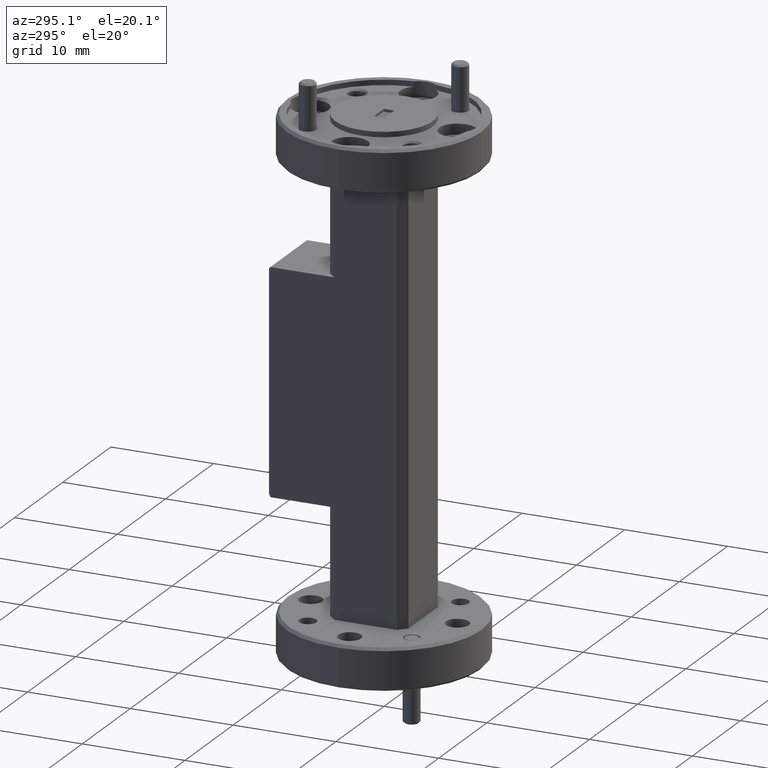
[diagram: clean part render]
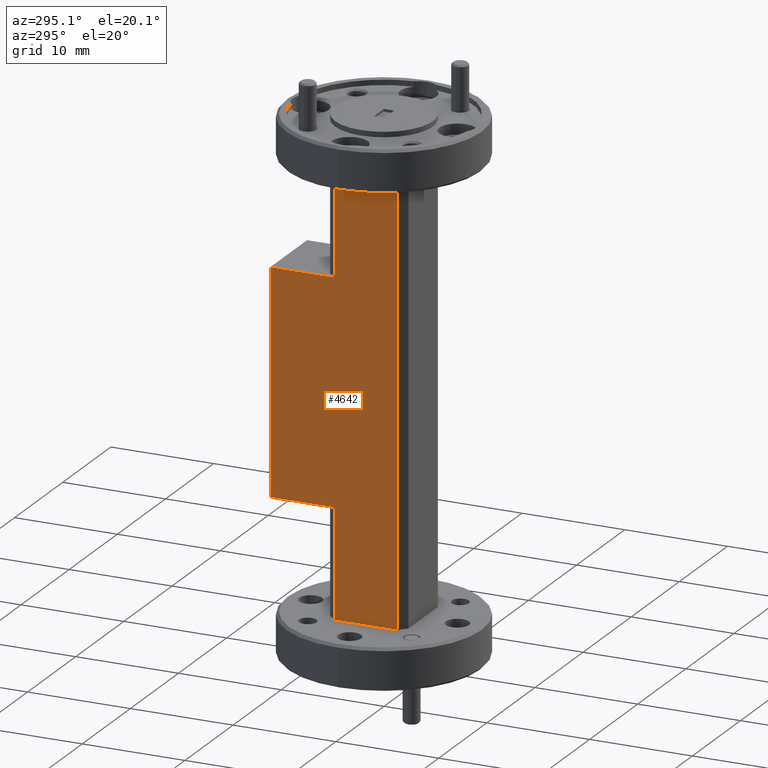
[diagram: same view with one face highlighted and labeled with its STEP entity id]
A machine part, auxiliary view. The second image highlights one B-rep face of the part: STEP entity #4642.
In plain terms, the highlighted planar face has unit normal (1, 0, -0).
Its self-contained STEP definition (entity closure, byte-faithful):
#112 = CARTESIAN_POINT ( 'NONE',  ( -0.1499999999999998834, 0.3649999999999998801, 0.4249999999999999889 ) ) ;
#197 = DIRECTION ( 'NONE',  ( -1.517693329813479319E-16, -1.000000000000000000, 0.000000000000000000 ) ) ;
#204 = DIRECTION ( 'NONE',  ( -1.707404996040164758E-16, 1.000000000000000000, 0.000000000000000000 ) ) ;
#291 = EDGE_CURVE ( 'NONE', #3747, #6281, #3305, .T. ) ;
#471 = ORIENTED_EDGE ( 'NONE', *, *, #5023, .T. ) ;
#603 = LINE ( 'NONE', #2907, #4680 ) ;
#607 = DIRECTION ( 'NONE',  ( -1.517693329813479319E-16, -1.000000000000000000, 0.000000000000000000 ) ) ;
#764 = DIRECTION ( 'NONE',  ( 1.000000000000000000, 1.707404996040164758E-16, -0.000000000000000000 ) ) ;
#768 = CARTESIAN_POINT ( 'NONE',  ( -0.1499999999999999112, 0.1200000000000003286, 0.4249999999999999889 ) ) ;
#1066 = EDGE_CURVE ( 'NONE', #1587, #3207, #3054, .T. ) ;
#1462 = CARTESIAN_POINT ( 'NONE',  ( -0.1499999999999998834, 0.3750000000000000555, 0.4249999999999999889 ) ) ;
#1494 = VECTOR ( 'NONE', #4973, 39.37007874015748143 ) ;
#1562 = DIRECTION ( 'NONE',  ( 0.000000000000000000, 0.000000000000000000, -1.000000000000000000 ) ) ;
#1587 = VERTEX_POINT ( 'NONE', #5098 ) ;
#1854 = DIRECTION ( 'NONE',  ( 0.000000000000000000, 0.000000000000000000, -1.000000000000000000 ) ) ;
#1881 = VERTEX_POINT ( 'NONE', #112 ) ;
#1987 = LINE ( 'NONE', #3774, #4881 ) ;
#2084 = ORIENTED_EDGE ( 'NONE', *, *, #291, .F. ) ;
#2165 = CARTESIAN_POINT ( 'NONE',  ( -0.1499999999999999944, -0.1200000000000000233, 0.8400000000000000799 ) ) ;
#2506 = CARTESIAN_POINT ( 'NONE',  ( -0.1500000000000000500, 0.1499999999999999944, -0.8400000000000000799 ) ) ;
#2603 = LINE ( 'NONE', #2765, #4150 ) ;
#2688 = EDGE_CURVE ( 'NONE', #5026, #7013, #1987, .T. ) ;
#2764 = ORIENTED_EDGE ( 'NONE', *, *, #3266, .T. ) ;
#2765 = CARTESIAN_POINT ( 'NONE',  ( -0.1500000000000000500, 0.1200000000000003286, 1.000000000000000000 ) ) ;
#2907 = CARTESIAN_POINT ( 'NONE',  ( -0.1500000000000000777, 0.3649999999999998801, 1.000000000000000000 ) ) ;
#2976 = AXIS2_PLACEMENT_3D ( 'NONE', #5478, #764, #3109 ) ;
#3054 = LINE ( 'NONE', #2506, #7573 ) ;
#3109 = DIRECTION ( 'NONE',  ( -1.707404996040164758E-16, 1.000000000000000000, 0.000000000000000000 ) ) ;
#3207 = VERTEX_POINT ( 'NONE', #3722 ) ;
#3266 = EDGE_CURVE ( 'NONE', #3747, #7551, #2603, .T. ) ;
#3305 = LINE ( 'NONE', #3343, #1494 ) ;
#3343 = CARTESIAN_POINT ( 'NONE',  ( -0.1500000000000000500, 0.1499999999999999944, 0.8400000000000000799 ) ) ;
#3722 = CARTESIAN_POINT ( 'NONE',  ( -0.1500000000000000500, 0.1200000000000003286, -0.8400000000000000799 ) ) ;
#3747 = VERTEX_POINT ( 'NONE', #5938 ) ;
#3774 = CARTESIAN_POINT ( 'NONE',  ( -0.1499999999999998834, 0.3750000000000000555, -0.4249999999999999889 ) ) ;
#3816 = ORIENTED_EDGE ( 'NONE', *, *, #1066, .F. ) ;
#3831 = EDGE_CURVE ( 'NONE', #1881, #7551, #6765, .T. ) ;
#4150 = VECTOR ( 'NONE', #1562, 39.37007874015748143 ) ;
#4165 = VECTOR ( 'NONE', #607, 39.37007874015748143 ) ;
#4188 = DIRECTION ( 'NONE',  ( 0.000000000000000000, 0.000000000000000000, 1.000000000000000000 ) ) ;
#4352 = ORIENTED_EDGE ( 'NONE', *, *, #2688, .T. ) ;
#4375 = ORIENTED_EDGE ( 'NONE', *, *, #3831, .F. ) ;
#4642 = ADVANCED_FACE ( 'NONE', ( #5519 ), #7210, .F. ) ;
#4680 = VECTOR ( 'NONE', #4738, 39.37007874015748143 ) ;
#4734 = ORIENTED_EDGE ( 'NONE', *, *, #6428, .T. ) ;
#4738 = DIRECTION ( 'NONE',  ( 0.000000000000000000, 0.000000000000000000, -1.000000000000000000 ) ) ;
#4821 = LINE ( 'NONE', #5512, #4861 ) ;
#4861 = VECTOR ( 'NONE', #1854, 39.37007874015748143 ) ;
#4874 = CARTESIAN_POINT ( 'NONE',  ( -0.1499999999999999112, 0.1200000000000003286, -0.4249999999999999889 ) ) ;
#4881 = VECTOR ( 'NONE', #197, 39.37007874015748143 ) ;
#4973 = DIRECTION ( 'NONE',  ( 1.707404996040164758E-16, -1.000000000000000000, 0.000000000000000000 ) ) ;
#5023 = EDGE_CURVE ( 'NONE', #7013, #3207, #4821, .T. ) ;
#5026 = VERTEX_POINT ( 'NONE', #6584 ) ;
#5098 = CARTESIAN_POINT ( 'NONE',  ( -0.1499999999999999944, -0.1200000000000000233, -0.8400000000000000799 ) ) ;
#5133 = ORIENTED_EDGE ( 'NONE', *, *, #6628, .T. ) ;
#5390 = LINE ( 'NONE', #7234, #5664 ) ;
#5478 = CARTESIAN_POINT ( 'NONE',  ( -0.1500000000000000500, 0.1499999999999999944, 1.000000000000000000 ) ) ;
#5512 = CARTESIAN_POINT ( 'NONE',  ( -0.1500000000000000500, 0.1200000000000003286, 1.000000000000000000 ) ) ;
#5519 = FACE_OUTER_BOUND ( 'NONE', #7433, .T. ) ;
#5664 = VECTOR ( 'NONE', #4188, 39.37007874015748143 ) ;
#5938 = CARTESIAN_POINT ( 'NONE',  ( -0.1500000000000000500, 0.1200000000000003286, 0.8400000000000000799 ) ) ;
#6281 = VERTEX_POINT ( 'NONE', #2165 ) ;
#6428 = EDGE_CURVE ( 'NONE', #1881, #5026, #603, .T. ) ;
#6584 = CARTESIAN_POINT ( 'NONE',  ( -0.1499999999999998834, 0.3649999999999998801, -0.4249999999999999889 ) ) ;
#6628 = EDGE_CURVE ( 'NONE', #1587, #6281, #5390, .T. ) ;
#6765 = LINE ( 'NONE', #1462, #4165 ) ;
#7013 = VERTEX_POINT ( 'NONE', #4874 ) ;
#7210 = PLANE ( 'NONE',  #2976 ) ;
#7234 = CARTESIAN_POINT ( 'NONE',  ( -0.1499999999999999944, -0.1200000000000000233, 1.000000000000000000 ) ) ;
#7433 = EDGE_LOOP ( 'NONE', ( #4375, #4734, #4352, #471, #3816, #5133, #2084, #2764 ) ) ;
#7551 = VERTEX_POINT ( 'NONE', #768 ) ;
#7573 = VECTOR ( 'NONE', #204, 39.37007874015748143 ) ;